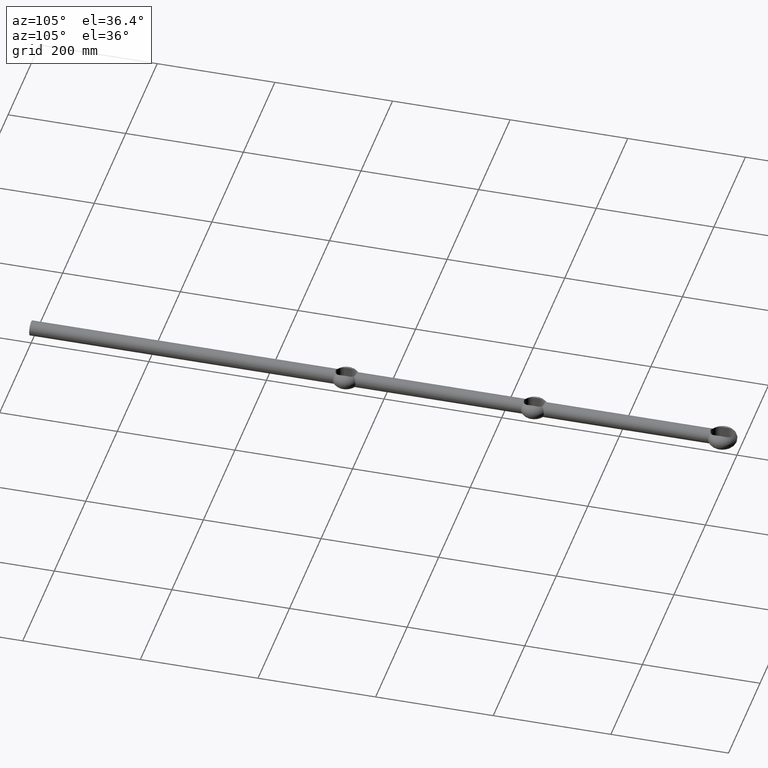
[diagram: clean part render]
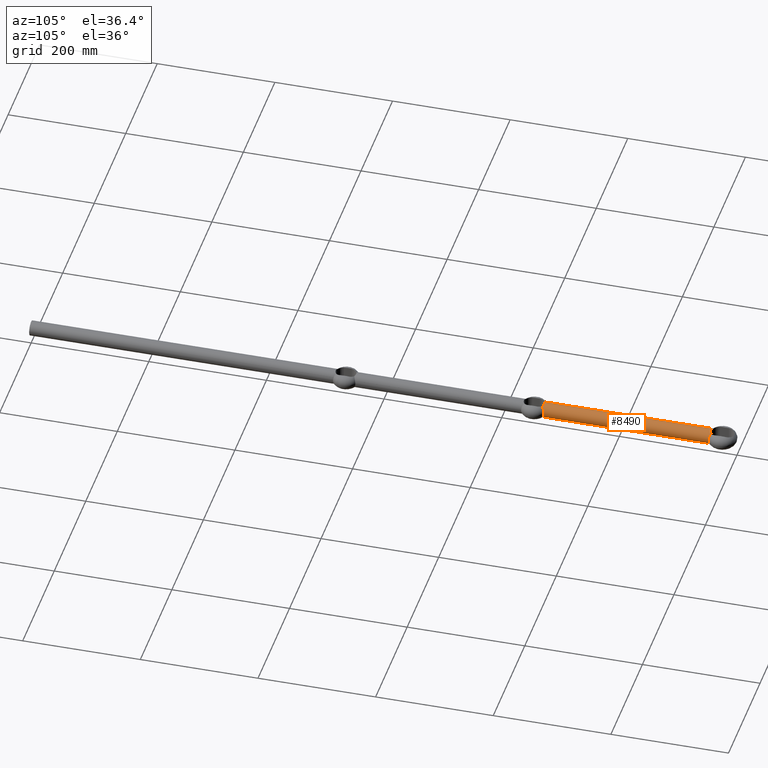
[diagram: same view with one face highlighted and labeled with its STEP entity id]
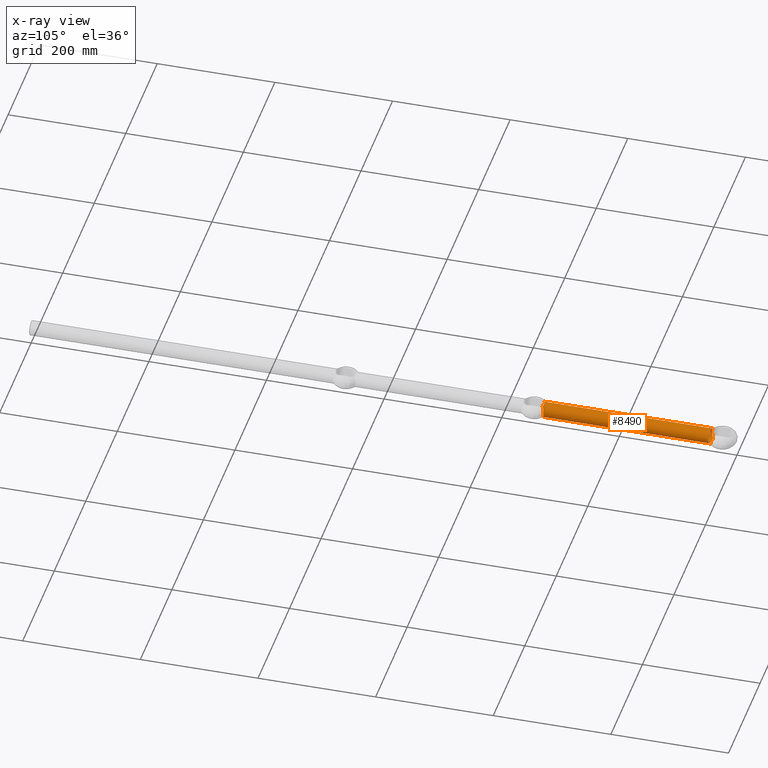
[diagram: x-ray of the same camera — body ghosted, the highlighted face saturated]
A machine part, auxiliary view. The second image highlights one B-rep face of the part: STEP entity #8490.
The next image is the same camera in x-ray: the body ghosted, the highlighted face saturated — about 0% of this face is hidden behind the body in this view.
In plain terms, the highlighted cylindrical surface (bore or boss wall) has radius 12.5 mm, axis along (-0, -1, -0).
Its self-contained STEP definition (entity closure, byte-faithful):
#9 = CARTESIAN_POINT ( 'NONE',  ( -11.87016924639617166, 874.4619469797885358, -3.958307038319709648 ) ) ;
#77 = CARTESIAN_POINT ( 'NONE',  ( 6.250340644379151378, 871.0516982842573270, -10.82512086903522963 ) ) ;
#89 = EDGE_CURVE ( 'NONE', #306, #1264, #10000, .T. ) ;
#143 = CARTESIAN_POINT ( 'NONE',  ( -3.890866384730371497, 872.2925357987872985, 11.88207007859977615 ) ) ;
#194 = CARTESIAN_POINT ( 'NONE',  ( -2.283783845611537799, 872.7751642507622591, 12.30253450483506761 ) ) ;
#306 = VERTEX_POINT ( 'NONE', #4023 ) ;
#307 = CARTESIAN_POINT ( 'NONE',  ( 2.283783845616235375, 872.7751642507616907, -12.30253450483420075 ) ) ;
#330 = CARTESIAN_POINT ( 'NONE',  ( -7.106314910587564704, 871.6191615762820675, 10.29616733453255506 ) ) ;
#469 = CARTESIAN_POINT ( 'NONE',  ( -4.394757411201870134, 872.0984732664575176, -11.71382991091426184 ) ) ;
#580 = CARTESIAN_POINT ( 'NONE',  ( -7.135139333711950194, 1157.736482733072535, -10.26351726692738175 ) ) ;
#703 = CARTESIAN_POINT ( 'NONE',  ( -12.23377112694089952, 1154.580577021352610, -2.579484898815351812 ) ) ;
#708 = DIRECTION ( 'NONE',  ( -0.000000000000000000, -1.000000000000000000, -0.000000000000000000 ) ) ;
#712 = ORIENTED_EDGE ( 'NONE', *, *, #1328, .T. ) ;
#770 = CARTESIAN_POINT ( 'NONE',  ( 11.22850550392411151, 1155.163842866882305, -5.516103669704439660 ) ) ;
#806 = CARTESIAN_POINT ( 'NONE',  ( 10.47547596195302333, 1155.612007723548231, -6.838258627552828983 ) ) ;
#909 = CARTESIAN_POINT ( 'NONE',  ( -12.29693873222413281, 874.6962120727082493, 2.262127823370123636 ) ) ;
#970 = CARTESIAN_POINT ( 'NONE',  ( 7.102394761685531854, 871.6151232764800625, 10.28931027416375699 ) ) ;
#1014 = CARTESIAN_POINT ( 'NONE',  ( 10.97993639049259329, 873.9639253237011189, 5.999101457576626828 ) ) ;
#1057 = CARTESIAN_POINT ( 'NONE',  ( 12.41879714340493912, 874.7626145565271827, 1.450713977401577148 ) ) ;
#1117 = CARTESIAN_POINT ( 'NONE',  ( -0.5913435325662070863, 872.9878410106388174, 12.48929667021436885 ) ) ;
#1137 = EDGE_LOOP ( 'NONE', ( #12358, #1823, #12252, #8967 ) ) ;
#1223 = CARTESIAN_POINT ( 'NONE',  ( 4.645444200426962489, 871.9745528540655641, -11.60766687128463204 ) ) ;
#1255 = CARTESIAN_POINT ( 'NONE',  ( -11.88377378138881291, 874.4694607310799483, 3.917523229231802961 ) ) ;
#1264 = VERTEX_POINT ( 'NONE', #8916 ) ;
#1299 = CARTESIAN_POINT ( 'NONE',  ( -6.250340644375429910, 871.0516982842598281, 10.82512086903737369 ) ) ;
#1328 = EDGE_CURVE ( 'NONE', #11610, #2979, #6964, .T. ) ;
#1414 = EDGE_CURVE ( 'NONE', #2979, #2529, #8305, .T. ) ;
#1551 = CARTESIAN_POINT ( 'NONE',  ( -8.443332960806909426, 1156.876155574655968, -9.218196024155583146 ) ) ;
#1640 = CARTESIAN_POINT ( 'NONE',  ( -10.73123605147390691, 1155.458840235219895, 6.430042525007597654 ) ) ;
#1666 = CARTESIAN_POINT ( 'NONE',  ( 8.941631726656330770, 1156.557629053867686, -8.748237387736249815 ) ) ;
#1711 = CARTESIAN_POINT ( 'NONE',  ( 12.50164222710252915, 1154.427758844000437, -1.040224740637054390 ) ) ;
#1823 = ORIENTED_EDGE ( 'NONE', *, *, #4767, .T. ) ;
#1849 = VERTEX_POINT ( 'NONE', #12667 ) ;
#1855 = ORIENTED_EDGE ( 'NONE', *, *, #1414, .T. ) ;
#1955 = CARTESIAN_POINT ( 'NONE',  ( 7.309823548977966823, 871.7491834367375532, 10.14305044308585657 ) ) ;
#1971 = CARTESIAN_POINT ( 'NONE',  ( -12.29814974820191154, 874.6968965957150886, -2.310626930581012761 ) ) ;
#2035 = CARTESIAN_POINT ( 'NONE',  ( 10.56189435499868701, 873.7246223131813849, -6.691260392783607180 ) ) ;
#2053 = CARTESIAN_POINT ( 'NONE',  ( -6.250340644372321286, 871.0516982842619882, -10.82512086903916781 ) ) ;
#2084 = CARTESIAN_POINT ( 'NONE',  ( 12.30037408921583619, 874.6981092464955054, 2.296774128736256415 ) ) ;
#2103 = CARTESIAN_POINT ( 'NONE',  ( -0.2999622207312869215, 872.9997342928352282, 12.49976617771579157 ) ) ;
#2122 = CARTESIAN_POINT ( 'NONE',  ( 5.820000492674071602, 871.3488549565903440, -11.07359592752668398 ) ) ;
#2138 = CARTESIAN_POINT ( 'NONE',  ( 9.935558587344518244, 873.3610250590459145, -7.589931059967828908 ) ) ;
#2153 = CARTESIAN_POINT ( 'NONE',  ( -4.645444200422789827, 871.9745528540671557, 11.60766687128630004 ) ) ;
#2220 = CARTESIAN_POINT ( 'NONE',  ( 2.829167776390409728, 872.6446660452390915, -12.18818290274218263 ) ) ;
#2299 = CARTESIAN_POINT ( 'NONE',  ( -11.23876228626210860, 874.1096747816624202, 5.478904079892699563 ) ) ;
#2326 = CARTESIAN_POINT ( 'NONE',  ( -6.250340644375429910, 871.0516982842598281, 10.82512086903737369 ) ) ;
#2337 = CARTESIAN_POINT ( 'NONE',  ( -7.135139333727605226, 1157.736482733061848, 10.26351726691649979 ) ) ;
#2347 = CARTESIAN_POINT ( 'NONE',  ( -2.825742747656037057, 872.6454768644913429, -12.18889396176930440 ) ) ;
#2529 = VERTEX_POINT ( 'NONE', #5935 ) ;
#2558 = CARTESIAN_POINT ( 'NONE',  ( -8.711691816118781517, 1156.704497772651166, -8.964983076418496566 ) ) ;
#2585 = CARTESIAN_POINT ( 'NONE',  ( 12.45635133919774518, 1154.453520229272044, 1.076448076567679379 ) ) ;
#2594 = EDGE_CURVE ( 'NONE', #10862, #11610, #4251, .T. ) ;
#2626 = CARTESIAN_POINT ( 'NONE',  ( 10.74520691289811225, 1155.450494385469256, -6.406813868498723252 ) ) ;
#2637 = CARTESIAN_POINT ( 'NONE',  ( -12.49905822656254628, 1154.429227917890785, 0.5440430576936076124 ) ) ;
#2664 = CARTESIAN_POINT ( 'NONE',  ( 12.49957033249989458, 1154.428936771827239, 0.2844940609796050013 ) ) ;
#2676 = CARTESIAN_POINT ( 'NONE',  ( -12.23157608182770950, 1154.581720545387498, 2.628049586032986884 ) ) ;
#2708 = CARTESIAN_POINT ( 'NONE',  ( 12.04661422556188377, 1154.688009267234293, -3.346295054423404025 ) ) ;
#2722 = CARTESIAN_POINT ( 'NONE',  ( -9.134758320556032984, 1156.436781185582959, -8.536084484116418736 ) ) ;
#2855 = EDGE_CURVE ( 'NONE', #306, #1849, #6403, .T. ) ;
#2891 = CARTESIAN_POINT ( 'NONE',  ( -7.921356139818699127, 872.1442332809045865, -9.726222848482306560 ) ) ;
#2930 = CARTESIAN_POINT ( 'NONE',  ( -12.49890377696422483, 874.8061394805704367, -0.5951374301016975066 ) ) ;
#2953 = CARTESIAN_POINT ( 'NONE',  ( 7.921047741473897119, 872.1397202560225423, 9.683334813482376902 ) ) ;
#2979 = VERTEX_POINT ( 'NONE', #2326 ) ;
#2980 = CARTESIAN_POINT ( 'NONE',  ( -7.135139333711950194, 1157.736482733072535, -10.26351726692738175 ) ) ;
#3010 = CARTESIAN_POINT ( 'NONE',  ( 11.87491962585307448, 874.4645721609176690, 3.944425831749097888 ) ) ;
#3053 = CARTESIAN_POINT ( 'NONE',  ( 7.917600032763172813, 872.1375693272918852, -9.686259538893189358 ) ) ;
#3068 = CARTESIAN_POINT ( 'NONE',  ( -12.45880585033184218, 874.7844084273808676, -1.166893664933520869 ) ) ;
#3114 = CARTESIAN_POINT ( 'NONE',  ( -12.11304742544236035, 874.5955699155409775, 3.099088406884018987 ) ) ;
#3164 = CARTESIAN_POINT ( 'NONE',  ( -6.682952097019100535, 871.3425255642247294, 10.57533437903925666 ) ) ;
#3194 = CARTESIAN_POINT ( 'NONE',  ( 6.250340644379151378, 871.0516982842573270, -10.82512086903522963 ) ) ;
#3211 = CARTESIAN_POINT ( 'NONE',  ( -9.073228235088269145, 872.8491954837601270, 8.614159435199598036 ) ) ;
#3273 = CARTESIAN_POINT ( 'NONE',  ( 1.163404475037727925, 872.9420668649047457, -12.44904448211178227 ) ) ;
#3301 = CARTESIAN_POINT ( 'NONE',  ( -10.84729865554042405, 873.8879724198529857, 6.217862138113783743 ) ) ;
#3316 = CARTESIAN_POINT ( 'NONE',  ( 3.890866384734815941, 872.2925357987851385, -11.88207007859832132 ) ) ;
#3554 = CARTESIAN_POINT ( 'NONE',  ( -8.968292833845257661, 1156.541558564349316, -8.710781083485228393 ) ) ;
#3578 = CARTESIAN_POINT ( 'NONE',  ( 7.881604524824227909, 1157.239277180260842, -9.713803843099759305 ) ) ;
#3616 = CARTESIAN_POINT ( 'NONE',  ( 12.33094345602357400, 1154.524990461208290, 2.114379223265204999 ) ) ;
#3629 = CARTESIAN_POINT ( 'NONE',  ( -9.582655251659319973, 1156.156736164195991, 8.041098922490318657 ) ) ;
#3656 = CARTESIAN_POINT ( 'NONE',  ( 11.80342866020984260, 1154.828432786973053, 4.122717760737970139 ) ) ;
#3670 = CARTESIAN_POINT ( 'NONE',  ( -11.81263121091554247, 1154.822861752671315, 4.120185860898963881 ) ) ;
#3926 = CARTESIAN_POINT ( 'NONE',  ( -7.107920833705924757, 871.6282149536471024, -10.32996073382678048 ) ) ;
#3949 = CARTESIAN_POINT ( 'NONE',  ( 8.878054069569953910, 872.7298206475295501, 8.803329809298444886 ) ) ;
#3994 = CARTESIAN_POINT ( 'NONE',  ( 8.317933062219882601, 872.3871634672779010, -9.345532682613583830 ) ) ;
#4008 = CARTESIAN_POINT ( 'NONE',  ( -10.08847635343034099, 873.4513063408343214, -7.400075382233175070 ) ) ;
#4023 = CARTESIAN_POINT ( 'NONE',  ( 7.135139333711916443, 1157.736482733072535, 10.26351726692740485 ) ) ;
#4033 = CARTESIAN_POINT ( 'NONE',  ( 10.10403625488981660, 873.4603995512267147, 7.379184200245395786 ) ) ;
#4047 = CARTESIAN_POINT ( 'NONE',  ( -1.163404475032898011, 872.9420668649053141, 12.44904448211223347 ) ) ;
#4082 = CARTESIAN_POINT ( 'NONE',  ( 9.431921574881007686, 873.0640011242585388, -8.220606252325518781 ) ) ;
#4125 = EDGE_LOOP ( 'NONE', ( #11979, #7537, #712, #1855 ) ) ;
#4134 = CARTESIAN_POINT ( 'NONE',  ( 12.49966708180459207, 874.8065538483768933, 0.3032697449387354305 ) ) ;
#4150 = CARTESIAN_POINT ( 'NONE',  ( 0.5702021357175609539, 873.0005180292451996, 12.50045586569378209 ) ) ;
#4179 = CARTESIAN_POINT ( 'NONE',  ( 7.099116836430805044, 871.6145014421025508, -10.30119188620012416 ) ) ;
#4197 = CARTESIAN_POINT ( 'NONE',  ( 6.037158478762004954, 871.1989039370054115, 10.94821059436329591 ) ) ;
#4251 = B_SPLINE_CURVE_WITH_KNOTS ( 'NONE', 3,
 ( #6163, #2122, #7162, #1223, #8148, #3316, #6115, #2220, #307, #10196, #3273, #10151, #11143, #5280, #4309, #5316, #2347, #5446, #469, #7407, #9250, #11406, #4482, #5529 ),
 .UNSPECIFIED., .F., .F.,
 ( 4, 2, 2, 2, 2, 2, 2, 2, 2, 2, 2, 4 ),
 ( 0.008934214103913311333, 0.01065008864671262469, 0.01150802591811228223, 0.01236596318951193804, 0.01408183773231115252, 0.01493977500371078578, 0.01579771227511041903, 0.01751358681790968555, 0.01922946136070895207, 0.02094533590350822205, 0.02180327317490785011, 0.02266121044630748163 ),
 .UNSPECIFIED. ) ;
#4274 = AXIS2_PLACEMENT_3D ( 'NONE', #6622, #708, #12443 ) ;
#4309 = CARTESIAN_POINT ( 'NONE',  ( -1.141339150563790650, 872.9554431184443501, -12.46073611375367918 ) ) ;
#4363 = CARTESIAN_POINT ( 'NONE',  ( 7.891214808389229063, 1157.227466192619659, 9.737897860020122920 ) ) ;
#4368 = B_SPLINE_CURVE_WITH_KNOTS ( 'NONE', 3,
 ( #5899, #9691, #6899, #970, #1955, #2953, #9849, #3949, #8943, #11888, #12078, #4033, #12036, #1014, #5207, #8073, #3010, #11019, #2084, #1057, #10971, #9093, #4134, #6129, #7982, #7032, #11983, #5116, #7082, #2035, #8902, #5162, #2138, #4082, #9040, #3994, #3053, #4179, #7932, #3194 ),
 .UNSPECIFIED., .F., .F.,
 ( 4, 2, 2, 2, 2, 2, 2, 2, 2, 2, 2, 2, 2, 2, 2, 2, 2, 2, 2, 4 ),
 ( 0.03973913789065248309, 0.04060166732256244998, 0.04146419675447241687, 0.04318925561829219800, 0.04405178505020208857, 0.04491431448211197913, 0.04663937334593176026, 0.04836443220975154139, 0.05008949107357132252, 0.05181454993739109671, 0.05267707936930098728, 0.05353960880121087784, 0.05698972652885044010, 0.05871478539267018654, 0.06043984425648993991, 0.06130237368839981660, 0.06216490312030968635, 0.06388996198412943972, 0.06561502084794917922, 0.06734007971176893259 ),
 .UNSPECIFIED. ) ;
#4482 = CARTESIAN_POINT ( 'NONE',  ( -6.037158478758374081, 871.1989039370076853, -10.94821059436529431 ) ) ;
#4516 = CARTESIAN_POINT ( 'NONE',  ( -8.353025128917181519, 1156.934272558698694, -9.300091105348814224 ) ) ;
#4541 = CARTESIAN_POINT ( 'NONE',  ( -2.700491973628100340, 1154.653540892848014, -13.34645910715179440 ) ) ;
#4592 = CARTESIAN_POINT ( 'NONE',  ( 11.21286548883649914, 1155.173061560458791, 5.547366163640255365 ) ) ;
#4634 = CARTESIAN_POINT ( 'NONE',  ( 11.96479554542690948, 1154.735136154914017, 3.627864031010509471 ) ) ;
#4647 = CARTESIAN_POINT ( 'NONE',  ( -7.135139333727605226, 1157.736482733061848, 10.26351726691649979 ) ) ;
#4720 = CARTESIAN_POINT ( 'NONE',  ( 11.72616079284764723, 1154.873235078471453, -4.337412942093796353 ) ) ;
#4767 = EDGE_CURVE ( 'NONE', #8054, #1264, #6243, .T. ) ;
#4956 = CARTESIAN_POINT ( 'NONE',  ( -9.410495179604547289, 873.0504409214723864, -8.231874779718220125 ) ) ;
#5038 = CARTESIAN_POINT ( 'NONE',  ( -11.23222769010727795, 874.1062748475527542, -5.513709973868061276 ) ) ;
#5116 = CARTESIAN_POINT ( 'NONE',  ( 11.24519215293198293, 874.1135681954104939, -5.487082232750995381 ) ) ;
#5162 = CARTESIAN_POINT ( 'NONE',  ( 10.09790078363377397, 873.4559481271184040, -7.372737847317001325 ) ) ;
#5176 = CARTESIAN_POINT ( 'NONE',  ( -12.18050856907882462, 874.6325396015264459, 2.822611463155441758 ) ) ;
#5207 = CARTESIAN_POINT ( 'NONE',  ( 11.23408068458169495, 874.1073161295722684, 5.509814462498300536 ) ) ;
#5225 = CARTESIAN_POINT ( 'NONE',  ( 5.122496869295439126, 871.7382385254329620, 11.40523791051042579 ) ) ;
#5267 = CARTESIAN_POINT ( 'NONE',  ( 2.266691595997235353, 872.7789840980825602, 12.30588106402180060 ) ) ;
#5280 = CARTESIAN_POINT ( 'NONE',  ( -0.5702021357126818568, 873.0005180292456544, -12.50045586569400413 ) ) ;
#5316 = CARTESIAN_POINT ( 'NONE',  ( -2.266691595992517350, 872.7789840980835834, -12.30588106402267101 ) ) ;
#5378 = CARTESIAN_POINT ( 'NONE',  ( 9.581702229346891642, 1156.157328113408084, 8.042203169532744056 ) ) ;
#5446 = CARTESIAN_POINT ( 'NONE',  ( -3.887887157762760726, 872.3051119934165172, -11.89278317029660492 ) ) ;
#5529 = CARTESIAN_POINT ( 'NONE',  ( -6.250340644372321286, 871.0516982842619882, -10.82512086903916781 ) ) ;
#5600 = CARTESIAN_POINT ( 'NONE',  ( -10.51618566000705179, 1155.586221683770646, -6.833554491703289990 ) ) ;
#5624 = CARTESIAN_POINT ( 'NONE',  ( 9.591547561325485916, 1156.151246304834785, -8.030358068365600843 ) ) ;
#5666 = CARTESIAN_POINT ( 'NONE',  ( 11.44399278139044185, 1155.037527538027916, -5.054603950788247424 ) ) ;
#5738 = CARTESIAN_POINT ( 'NONE',  ( 12.03757237234880151, 1154.693214017671835, 3.378492987211077825 ) ) ;
#5752 = CARTESIAN_POINT ( 'NONE',  ( -12.37216654728461585, 1154.501486300447141, -1.802313031889819950 ) ) ;
#5899 = CARTESIAN_POINT ( 'NONE',  ( 6.250340644374906773, 871.0516982842601692, 10.82512086903457238 ) ) ;
#5917 = CARTESIAN_POINT ( 'NONE',  ( -10.97156841159980445, 873.9591919494130252, -6.014791826380359474 ) ) ;
#5935 = CARTESIAN_POINT ( 'NONE',  ( 6.250340644374906773, 871.0516982842601692, 10.82512086903457238 ) ) ;
#6049 = CARTESIAN_POINT ( 'NONE',  ( -5.365954009658804758, 871.6173781976953023, 11.30171958695770940 ) ) ;
#6098 = CARTESIAN_POINT ( 'NONE',  ( -7.922486728963196612, 872.1406313087213675, 9.682198997053124145 ) ) ;
#6115 = CARTESIAN_POINT ( 'NONE',  ( 3.628342751717800407, 872.3881377184010262, -11.96501680193022032 ) ) ;
#6129 = CARTESIAN_POINT ( 'NONE',  ( 12.50129220710996414, 874.8074360637044720, -1.142842184539624606 ) ) ;
#6163 = CARTESIAN_POINT ( 'NONE',  ( 6.250340644379151378, 871.0516982842573270, -10.82512086903522963 ) ) ;
#6185 = CARTESIAN_POINT ( 'NONE',  ( 5.816690598897524822, 871.3400442310020253, 11.06712742355116141 ) ) ;
#6243 =( BOUNDED_CURVE ( )  B_SPLINE_CURVE ( 3, ( #12378, #4541, #12416, #11462 ),
 .UNSPECIFIED., .F., .F. ) 
 B_SPLINE_CURVE_WITH_KNOTS ( ( 4, 4 ),
 ( 5.675691890322283939, 6.890678724036789937 ),
 .UNSPECIFIED. ) 
 CURVE ( )  GEOMETRIC_REPRESENTATION_ITEM ( )  RATIONAL_B_SPLINE_CURVE ( ( 1.000000000000000000, 0.8807209209028128427, 0.8807209209028128427, 1.000000000000000000 ) ) 
 REPRESENTATION_ITEM ( '' )  );
#6347 = CARTESIAN_POINT ( 'NONE',  ( 10.46807335990419752, 1155.616471733651451, 6.849391564772044916 ) ) ;
#6403 =( BOUNDED_CURVE ( )  B_SPLINE_CURVE ( 3, ( #12145, #9201, #9278, #2337 ),
 .UNSPECIFIED., .F., .T. ) 
 B_SPLINE_CURVE_WITH_KNOTS ( ( 4, 4 ),
 ( 5.675691890322286604, 6.890678724037921477 ),
 .UNSPECIFIED. ) 
 CURVE ( )  GEOMETRIC_REPRESENTATION_ITEM ( )  RATIONAL_B_SPLINE_CURVE ( ( 1.000000000000000000, 0.8807209209025980146, 0.8807209209025980146, 1.000000000000000000 ) ) 
 REPRESENTATION_ITEM ( '' )  );
#6615 = CARTESIAN_POINT ( 'NONE',  ( -11.97232532664629368, 1154.730712094100454, 3.630636906264722352 ) ) ;
#6622 = CARTESIAN_POINT ( 'NONE',  ( 0.000000000000000000, 1200.000999999999976, 0.000000000000000000 ) ) ;
#6661 = CARTESIAN_POINT ( 'NONE',  ( -12.46557580481010596, 1154.448238053602381, 1.066607337481743967 ) ) ;
#6688 = CARTESIAN_POINT ( 'NONE',  ( 12.23236808778971429, 1154.581266514582694, 2.624619001207991964 ) ) ;
#6831 = CARTESIAN_POINT ( 'NONE',  ( -9.050683459859133251, 872.8343860749763508, -8.625909275186792513 ) ) ;
#6899 = CARTESIAN_POINT ( 'NONE',  ( 6.680543845662584523, 871.3389170158058050, 10.56807698661443773 ) ) ;
#6916 = CARTESIAN_POINT ( 'NONE',  ( -12.46310100106057028, 874.7867398313841250, 1.119703917399096360 ) ) ;
#6964 = B_SPLINE_CURVE_WITH_KNOTS ( 'NONE', 3,
 ( #2053, #3926, #2891, #10805, #6831, #4956, #9898, #4008, #10896, #5917, #5038, #7903, #9, #8959, #1971, #3068, #2930, #9946, #6916, #8878, #909, #5176, #3114, #1255, #10988, #12143, #2299, #11127, #3301, #10133, #9993, #10034, #3211, #8180, #6098, #330, #3164, #8043 ),
 .UNSPECIFIED., .F., .F.,
 ( 4, 2, 2, 2, 2, 2, 2, 2, 2, 2, 2, 2, 2, 2, 2, 2, 2, 2, 4 ),
 ( 0.08339208695020354500, 0.08682322706740638885, 0.08768101209670713103, 0.08853879712600787322, 0.09025436718460937147, 0.09196993724321085584, 0.09368550730181235409, 0.09540107736041383846, 0.09711664741901533671, 0.09883221747761683496, 0.09969000250691757714, 0.1005477875362183193, 0.1022633575948197621, 0.1031211426241204487, 0.1039789276534211215, 0.1056944977120224116, 0.1074100677706236739, 0.1091256378292249501, 0.1108412078878262264 ),
 .UNSPECIFIED. ) ;
#7032 = CARTESIAN_POINT ( 'NONE',  ( 11.88071852201724354, 874.4677773822756990, -3.927698053025902691 ) ) ;
#7049 = CARTESIAN_POINT ( 'NONE',  ( -2.829167776385754340, 872.6446660452401147, 12.18818290274326088 ) ) ;
#7082 = CARTESIAN_POINT ( 'NONE',  ( 10.99055223512517721, 873.9699648794302220, -5.980307149949449119 ) ) ;
#7142 = CARTESIAN_POINT ( 'NONE',  ( 3.887887157767109247, 872.3051119934146982, 11.89278317029518028 ) ) ;
#7162 = CARTESIAN_POINT ( 'NONE',  ( 5.365954009662758040, 871.6173781976929149, -11.30171958695582823 ) ) ;
#7336 = CARTESIAN_POINT ( 'NONE',  ( 10.73229693249362526, 1155.458212642862463, 6.428018853194918059 ) ) ;
#7350 = CYLINDRICAL_SURFACE ( 'NONE', #4274, 12.49999999999999645 ) ;
#7407 = CARTESIAN_POINT ( 'NONE',  ( -5.122496869291422783, 871.7382385254354631, -11.40523791051222879 ) ) ;
#7537 = ORIENTED_EDGE ( 'NONE', *, *, #2594, .T. ) ;
#7544 = CARTESIAN_POINT ( 'NONE',  ( 12.49064826302321052, 1154.434007625778577, 0.5505770759076430432 ) ) ;
#7597 = CARTESIAN_POINT ( 'NONE',  ( -9.943520359538853270, 1155.931562806652664, -7.636305990365180207 ) ) ;
#7644 = CARTESIAN_POINT ( 'NONE',  ( -11.21483142605037209, 1155.171896945766093, 5.543683806922287793 ) ) ;
#7673 = CARTESIAN_POINT ( 'NONE',  ( 8.599185344921220775, 1156.774934607565683, -9.084695173292359982 ) ) ;
#7903 = CARTESIAN_POINT ( 'NONE',  ( -11.68048504620531780, 874.3570466909668539, -4.486669772082484187 ) ) ;
#7932 = CARTESIAN_POINT ( 'NONE',  ( 6.679132340550088642, 871.3399576955811199, -10.57753987673279283 ) ) ;
#7982 = CARTESIAN_POINT ( 'NONE',  ( 12.34495872111757109, 874.7231355574580220, -2.272692798090399258 ) ) ;
#8043 = CARTESIAN_POINT ( 'NONE',  ( -6.250340644375429910, 871.0516982842598281, 10.82512086903737369 ) ) ;
#8054 = VERTEX_POINT ( 'NONE', #2980 ) ;
#8073 = CARTESIAN_POINT ( 'NONE',  ( 11.68114275706403937, 874.3574099647501043, 4.484810824096967963 ) ) ;
#8148 = CARTESIAN_POINT ( 'NONE',  ( 4.398673821157580655, 872.0859706031792484, -11.70359343072219538 ) ) ;
#8180 = CARTESIAN_POINT ( 'NONE',  ( -8.316704254377357941, 872.3864033129015070, 9.346638097533393363 ) ) ;
#8217 = CARTESIAN_POINT ( 'NONE',  ( -5.820000492670228454, 871.3488549565921630, 11.07359592752870547 ) ) ;
#8305 = B_SPLINE_CURVE_WITH_KNOTS ( 'NONE', 3,
 ( #1299, #8217, #6049, #2153, #9153, #143, #9199, #7049, #194, #9060, #4047, #1117, #2103, #4150, #9004, #5267, #11035, #7142, #9109, #5225, #10082, #6185, #4197, #11082 ),
 .UNSPECIFIED., .F., .F.,
 ( 4, 2, 2, 2, 2, 2, 2, 2, 2, 2, 2, 4 ),
 ( 0.008934214103918246622, 0.01065008864671751140, 0.01150802591811707701, 0.01236596318951664261, 0.01408183773231587443, 0.01493977500371551463, 0.01579771227511515483, 0.01751358681791443522, 0.01922946136071371909, 0.02094533590351299601, 0.02180327317491263794, 0.02266121044631227988 ),
 .UNSPECIFIED. ) ;
#8469 = CARTESIAN_POINT ( 'NONE',  ( -8.622389387441367958, 1156.761442318499348, -9.050934243388617517 ) ) ;
#8490 = ADVANCED_FACE ( 'NONE', ( #9489, #8724 ), #7350, .T. ) ;
#8664 = CARTESIAN_POINT ( 'NONE',  ( 12.43099279705486637, 1154.467952789142146, 1.337389092009709790 ) ) ;
#8674 = CARTESIAN_POINT ( 'NONE',  ( -11.85768787771400312, 1154.796549351591239, -4.088833018394486984 ) ) ;
#8724 = FACE_OUTER_BOUND ( 'NONE', #1137, .T. ) ;
#8878 = CARTESIAN_POINT ( 'NONE',  ( -12.34606045819869813, 874.7229979053222451, 1.976852806564403764 ) ) ;
#8902 = CARTESIAN_POINT ( 'NONE',  ( 10.41083778121361192, 873.6376159603596534, -6.923822664874319521 ) ) ;
#8916 = CARTESIAN_POINT ( 'NONE',  ( 7.135139333710436738, 1157.736482733073672, -10.26351726692843513 ) ) ;
#8943 = CARTESIAN_POINT ( 'NONE',  ( 9.061967920428475765, 872.8412005371784517, 8.614043789165489073 ) ) ;
#8959 = CARTESIAN_POINT ( 'NONE',  ( -12.17882142918688082, 874.6317765256618486, -2.871484136066121184 ) ) ;
#8967 = ORIENTED_EDGE ( 'NONE', *, *, #2855, .T. ) ;
#9004 = CARTESIAN_POINT ( 'NONE',  ( 1.141339150568618122, 872.9554431184440091, 12.46073611375323864 ) ) ;
#9040 = CARTESIAN_POINT ( 'NONE',  ( 9.074069876402793611, 872.8497018723579686, -8.613259976775848870 ) ) ;
#9060 = CARTESIAN_POINT ( 'NONE',  ( -1.445975460315437777, 872.9082131116542769, 12.41928584670627700 ) ) ;
#9093 = CARTESIAN_POINT ( 'NONE',  ( 12.48921242191953240, 874.8008806621658096, 0.5933712850883655632 ) ) ;
#9109 = CARTESIAN_POINT ( 'NONE',  ( 4.394757411206079212, 872.0984732664559260, 11.71382991091268444 ) ) ;
#9153 = CARTESIAN_POINT ( 'NONE',  ( -4.398673821153295194, 872.0859706031810674, 11.70359343072380476 ) ) ;
#9199 = CARTESIAN_POINT ( 'NONE',  ( -3.628342751713248937, 872.3881377184030725, 11.96501680193160411 ) ) ;
#9201 = CARTESIAN_POINT ( 'NONE',  ( 2.700491973623380559, 1154.653540892845058, 13.34645910715505757 ) ) ;
#9250 = CARTESIAN_POINT ( 'NONE',  ( -5.359884618048238458, 871.6094720272025143, -11.29543429061631876 ) ) ;
#9266 = CARTESIAN_POINT ( 'NONE',  ( 7.135139333711916443, 1157.736482733072535, 10.26351726692740485 ) ) ;
#9278 = CARTESIAN_POINT ( 'NONE',  ( -2.700491973637199727, 1154.653540892847559, 13.34645910715225980 ) ) ;
#9308 = B_SPLINE_CURVE_WITH_KNOTS ( 'NONE', 3,
 ( #580, #11303, #10347, #4516, #1551, #8469, #2558, #3554, #2722, #7597, #5600, #12608, #8674, #10594, #703, #10629, #5752, #9488, #10549, #2637, #6661, #12646, #2676, #6615, #3670, #12482, #7644, #1640, #10466, #9536, #3629, #9572, #10505, #4647 ),
 .UNSPECIFIED., .F., .F.,
 ( 4, 2, 2, 2, 2, 2, 2, 2, 2, 2, 2, 2, 2, 2, 2, 2, 4 ),
 ( 0.08340891139418274425, 0.08497550051746077804, 0.08536714779828043220, 0.08575879507910008637, 0.08654208964073965837, 0.08967526788729825171, 0.09280844613385683117, 0.09359174069549644481, 0.09437503525713607233, 0.09594162438041531349, 0.09750821350369456852, 0.09907480262697380968, 0.1006413917502530508, 0.1022079808735322920, 0.1037745699968115332, 0.1053411591200907882, 0.1084743373666490207 ),
 .UNSPECIFIED. ) ;
#9488 = CARTESIAN_POINT ( 'NONE',  ( -12.46926069458808328, 1154.446143660402640, -1.021218431617064715 ) ) ;
#9489 = FACE_OUTER_BOUND ( 'NONE', #4125, .T. ) ;
#9519 = CARTESIAN_POINT ( 'NONE',  ( 11.42923531967361761, 1155.046160818386625, 5.088103295772287815 ) ) ;
#9536 = CARTESIAN_POINT ( 'NONE',  ( -9.892709820650749108, 1155.966049878976492, 7.656915903212780705 ) ) ;
#9558 = CARTESIAN_POINT ( 'NONE',  ( 11.81335554625495199, 1154.822682159302076, -4.094180784447951638 ) ) ;
#9572 = CARTESIAN_POINT ( 'NONE',  ( -8.601993726311480515, 1156.770143959972074, 9.121508545531987977 ) ) ;
#9691 = CARTESIAN_POINT ( 'NONE',  ( 6.465680083266361677, 871.1964623280642854, 10.70078555088979577 ) ) ;
#9849 = CARTESIAN_POINT ( 'NONE',  ( 8.313821572883240307, 872.3845990181406478, 9.349021875480982402 ) ) ;
#9898 = CARTESIAN_POINT ( 'NONE',  ( -9.584523524016221430, 873.1539475776068002, -8.028637899213894258 ) ) ;
#9940 = CARTESIAN_POINT ( 'NONE',  ( -6.250340644372321286, 871.0516982842619882, -10.82512086903916781 ) ) ;
#9946 = CARTESIAN_POINT ( 'NONE',  ( -12.50105208797963741, 874.8073057128920027, 0.5481613632303299344 ) ) ;
#9993 = CARTESIAN_POINT ( 'NONE',  ( -10.10999103663719190, 873.4638592591498991, 7.370841780407157984 ) ) ;
#10000 = B_SPLINE_CURVE_WITH_KNOTS ( 'NONE', 3,
 ( #9266, #4363, #11252, #5378, #12246, #6347, #7336, #4592, #9519, #10494, #3656, #4634, #5738, #6688, #3616, #8664, #2585, #7544, #2664, #1711, #12593, #2708, #11559, #9558, #4720, #5666, #770, #2626, #806, #11515, #5624, #1666, #7673, #3578, #12509, #12547 ),
 .UNSPECIFIED., .F., .F.,
 ( 4, 2, 2, 2, 2, 2, 2, 2, 2, 2, 2, 2, 2, 2, 2, 2, 2, 4 ),
 ( 0.04100989923013851485, 0.04406384924167050521, 0.04559082424743637896, 0.04711779925320225271, 0.04864477425896812646, 0.04940826176185112578, 0.05017174926473413205, 0.05169872427050013763, 0.05246221177338316471, 0.05322569927626619180, 0.05627964928779829318, 0.05704313679068138965, 0.05780662429356447918, 0.05933359929933079702, 0.06086057430509712179, 0.06238754931086344657, 0.06391452431662976441, 0.06544149932239608225 ),
 .UNSPECIFIED. ) ;
#10034 = CARTESIAN_POINT ( 'NONE',  ( -9.437124417755912376, 873.0671075960028702, 8.214737368685327112 ) ) ;
#10082 = CARTESIAN_POINT ( 'NONE',  ( 5.359884618052230820, 871.6094720272003542, 11.29543429061442161 ) ) ;
#10133 = CARTESIAN_POINT ( 'NONE',  ( -10.42116360353627158, 873.6440773804119999, 6.924748364572046455 ) ) ;
#10151 = CARTESIAN_POINT ( 'NONE',  ( 0.5913435325711097201, 872.9878410106384763, -12.48929667021414147 ) ) ;
#10196 = CARTESIAN_POINT ( 'NONE',  ( 1.445975460320237049, 872.9082131116539358, -12.41928584670572278 ) ) ;
#10347 = CARTESIAN_POINT ( 'NONE',  ( -7.897743657843895981, 1157.228663458427263, -9.701093704767654202 ) ) ;
#10466 = CARTESIAN_POINT ( 'NONE',  ( -10.46615169964987224, 1155.617630619546389, 6.852279718778903295 ) ) ;
#10494 = CARTESIAN_POINT ( 'NONE',  ( 11.71457105181378466, 1154.879964805726331, 4.368681592567406291 ) ) ;
#10505 = CARTESIAN_POINT ( 'NONE',  ( -7.890936212336500333, 1157.227653753258437, 9.738091538423420346 ) ) ;
#10549 = CARTESIAN_POINT ( 'NONE',  ( -12.50090274799307899, 1154.428179257710781, -0.4998698679102205888 ) ) ;
#10594 = CARTESIAN_POINT ( 'NONE',  ( -12.17728331036809131, 1154.612935149795248, -2.833876057210442223 ) ) ;
#10629 = CARTESIAN_POINT ( 'NONE',  ( -12.33127132754456667, 1154.524819066981081, -2.063648656158902917 ) ) ;
#10730 = EDGE_CURVE ( 'NONE', #8054, #1849, #9308, .T. ) ;
#10805 = CARTESIAN_POINT ( 'NONE',  ( -8.864038892397513081, 872.7213023677584260, -8.817448349073313096 ) ) ;
#10821 = EDGE_CURVE ( 'NONE', #2529, #10862, #4368, .T. ) ;
#10862 = VERTEX_POINT ( 'NONE', #77 ) ;
#10896 = CARTESIAN_POINT ( 'NONE',  ( -10.40035054934317316, 873.6320638590274257, -6.955986096584995337 ) ) ;
#10971 = CARTESIAN_POINT ( 'NONE',  ( 12.44877057040117663, 874.7789073328085578, 1.166459466638315012 ) ) ;
#10988 = CARTESIAN_POINT ( 'NONE',  ( -11.69518378239710188, 874.3652111354667795, 4.448535728997283556 ) ) ;
#11019 = CARTESIAN_POINT ( 'NONE',  ( 12.18354745665097205, 874.6343651885123336, 2.851908594989280843 ) ) ;
#11035 = CARTESIAN_POINT ( 'NONE',  ( 2.825742747660667575, 872.6454768644902060, 12.18889396176822437 ) ) ;
#11082 = CARTESIAN_POINT ( 'NONE',  ( 6.250340644374906773, 871.0516982842601692, 10.82512086903457238 ) ) ;
#11127 = CARTESIAN_POINT ( 'NONE',  ( -10.98255466097455901, 873.9648486546352615, 5.975923423411504842 ) ) ;
#11143 = CARTESIAN_POINT ( 'NONE',  ( 0.2999622207362518944, 872.9997342928350008, -12.49976617771567788 ) ) ;
#11252 = CARTESIAN_POINT ( 'NONE',  ( 8.602005082788322099, 1156.770145208843815, 9.121387300369345752 ) ) ;
#11303 = CARTESIAN_POINT ( 'NONE',  ( -7.521579661726157440, 1157.476317543954337, -9.994866129813622990 ) ) ;
#11406 = CARTESIAN_POINT ( 'NONE',  ( -5.816690598893718089, 871.3400442310045264, -11.06712742355316159 ) ) ;
#11462 = CARTESIAN_POINT ( 'NONE',  ( 7.135139333710436738, 1157.736482733073672, -10.26351726692843513 ) ) ;
#11515 = CARTESIAN_POINT ( 'NONE',  ( 9.899034688602903032, 1155.962165610706734, -7.648953518004463881 ) ) ;
#11559 = CARTESIAN_POINT ( 'NONE',  ( 11.97347705405077001, 1154.730129454816051, -3.599101664873493256 ) ) ;
#11610 = VERTEX_POINT ( 'NONE', #9940 ) ;
#11888 = CARTESIAN_POINT ( 'NONE',  ( 9.420846680753291125, 873.0566157321405854, 8.220015864356648549 ) ) ;
#11979 = ORIENTED_EDGE ( 'NONE', *, *, #10821, .T. ) ;
#11983 = CARTESIAN_POINT ( 'NONE',  ( 11.69004885827971840, 874.3623543913399772, -4.461521677227160865 ) ) ;
#12036 = CARTESIAN_POINT ( 'NONE',  ( 10.41492761143720536, 873.6404684306022546, 6.933794364277354738 ) ) ;
#12078 = CARTESIAN_POINT ( 'NONE',  ( 9.596422524505117124, 873.1610100829233261, 8.014496350769061195 ) ) ;
#12143 = CARTESIAN_POINT ( 'NONE',  ( -11.35983603778821127, 874.1776900921730658, 5.223344106376743845 ) ) ;
#12145 = CARTESIAN_POINT ( 'NONE',  ( 7.135139333711916443, 1157.736482733072535, 10.26351726692740485 ) ) ;
#12246 = CARTESIAN_POINT ( 'NONE',  ( 9.894042182769203109, 1155.965231692912084, 7.655237028432886781 ) ) ;
#12252 = ORIENTED_EDGE ( 'NONE', *, *, #89, .F. ) ;
#12358 = ORIENTED_EDGE ( 'NONE', *, *, #10730, .F. ) ;
#12378 = CARTESIAN_POINT ( 'NONE',  ( -7.135139333711950194, 1157.736482733072535, -10.26351726692738175 ) ) ;
#12416 = CARTESIAN_POINT ( 'NONE',  ( 2.700491973626781395, 1154.653540892847786, -13.34645910715205908 ) ) ;
#12443 = DIRECTION ( 'NONE',  ( 0.000000000000000000, 0.000000000000000000, -1.000000000000000000 ) ) ;
#12482 = CARTESIAN_POINT ( 'NONE',  ( -11.43448622918702995, 1155.043089812979588, 5.076092230050579523 ) ) ;
#12509 = CARTESIAN_POINT ( 'NONE',  ( 7.512524347606087893, 1157.482413899173025, -10.00116133313211186 ) ) ;
#12547 = CARTESIAN_POINT ( 'NONE',  ( 7.135139333710436738, 1157.736482733073672, -10.26351726692843513 ) ) ;
#12593 = CARTESIAN_POINT ( 'NONE',  ( 12.37061715819637264, 1154.501852918764598, -2.077380412354411288 ) ) ;
#12608 = CARTESIAN_POINT ( 'NONE',  ( -11.48383682669443573, 1155.012513671890247, -5.040745933358757647 ) ) ;
#12646 = CARTESIAN_POINT ( 'NONE',  ( -12.33140267143491542, 1154.524727796495426, 2.112993022412736011 ) ) ;
#12667 = CARTESIAN_POINT ( 'NONE',  ( -7.135139333727605226, 1157.736482733061848, 10.26351726691649979 ) ) ;